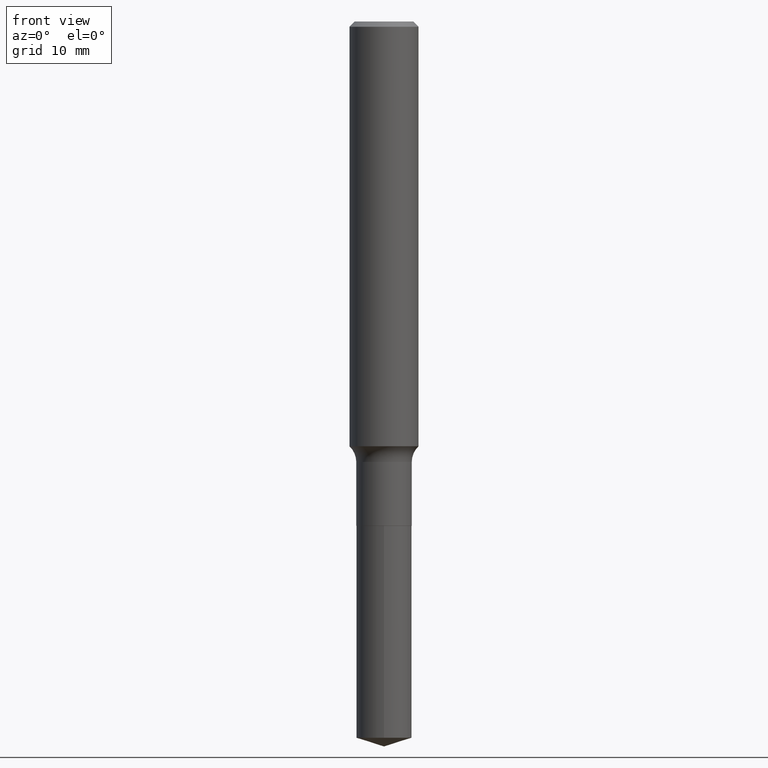
[diagram: clean part render]
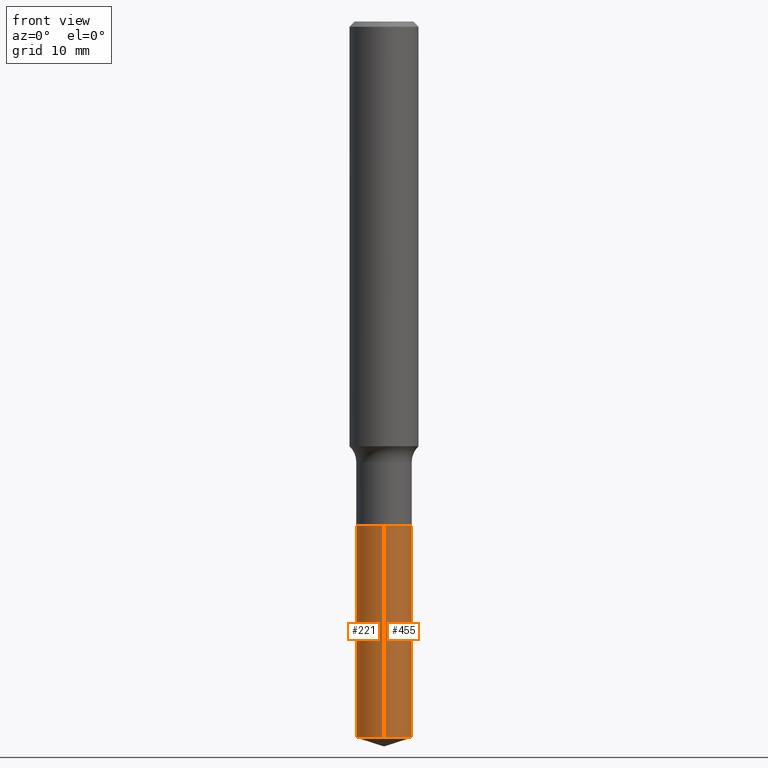
[diagram: same view with one multi-face feature highlighted, each face labeled with its STEP entity id]
A machine part, front view. The highlighted faces form ONE feature: a constant-radius fillet chain: 2 tangent blend faces with common blend radius 2.5527 mm. The faces share edges in the B-rep.
Their STEP definitions:
[1] entity #455 (Cylinder):
#30 = CIRCLE ( 'NONE', #173, 0.1005000000000000060 ) ;
#49 = CARTESIAN_POINT ( 'NONE',  ( -7.017877491074251076E-16, -0.1005000000000063759, -1.825999999999999845 ) ) ;
#72 = LINE ( 'NONE', #226, #358 ) ;
#79 = CARTESIAN_POINT ( 'NONE',  ( 6.341792019811160052E-29, -9.054606260685446473E-15, -2.593312471717662326 ) ) ;
#83 = CYLINDRICAL_SURFACE ( 'NONE', #171, 0.1005000000000000060 ) ;
#85 = DIRECTION ( 'NONE',  ( -6.982962677686265922E-15, -1.000000000000000000, 2.718256710113694497E-15 ) ) ;
#100 = DIRECTION ( 'NONE',  ( -2.445374014991277107E-29, 3.491617085227932147E-15, 1.000000000000000000 ) ) ;
#105 = EDGE_CURVE ( 'NONE', #457, #470, #254, .T. ) ;
#124 = FACE_OUTER_BOUND ( 'NONE', #309, .T. ) ;
#167 = ORIENTED_EDGE ( 'NONE', *, *, #213, .T. ) ;
#171 = AXIS2_PLACEMENT_3D ( 'NONE', #285, #199, #85 ) ;
#173 = AXIS2_PLACEMENT_3D ( 'NONE', #343, #341, #184 ) ;
#184 = DIRECTION ( 'NONE',  ( -6.982962677686265922E-15, -1.000000000000000000, 2.718256710113694497E-15 ) ) ;
#199 = DIRECTION ( 'NONE',  ( -2.445374014991277107E-29, 3.491617085227932147E-15, 1.000000000000000000 ) ) ;
#213 = EDGE_CURVE ( 'NONE', #239, #318, #72, .T. ) ;
#226 = CARTESIAN_POINT ( 'NONE',  ( 7.140954494389453000E-16, 0.1004999999999936361, -1.826000000000000512 ) ) ;
#233 = VECTOR ( 'NONE', #100, 39.37007874015748143 ) ;
#239 = VERTEX_POINT ( 'NONE', #276 ) ;
#244 = EDGE_CURVE ( 'NONE', #470, #318, #30, .T. ) ;
#254 = LINE ( 'NONE', #486, #233 ) ;
#258 = AXIS2_PLACEMENT_3D ( 'NONE', #79, #355, #317 ) ;
#269 = ORIENTED_EDGE ( 'NONE', *, *, #105, .F. ) ;
#276 = CARTESIAN_POINT ( 'NONE',  ( 7.140954494389643313E-16, 0.1004999999999909993, -2.593312471717662770 ) ) ;
#285 = CARTESIAN_POINT ( 'NONE',  ( 4.465426040094059556E-29, -6.375444924727584257E-15, -1.826000000000000068 ) ) ;
#309 = EDGE_LOOP ( 'NONE', ( #397, #167, #361, #269 ) ) ;
#317 = DIRECTION ( 'NONE',  ( -6.982962677686265922E-15, -1.000000000000000000, 5.436513420227388995E-15 ) ) ;
#318 = VERTEX_POINT ( 'NONE', #453 ) ;
#341 = DIRECTION ( 'NONE',  ( -2.445374014991277107E-29, 3.491617085227932147E-15, 1.000000000000000000 ) ) ;
#343 = CARTESIAN_POINT ( 'NONE',  ( 4.465426040094059556E-29, -6.375444924727584257E-15, -1.826000000000000068 ) ) ;
#355 = DIRECTION ( 'NONE',  ( -2.445374014991277107E-29, 3.491617085227932147E-15, 1.000000000000000000 ) ) ;
#358 = VECTOR ( 'NONE', #461, 39.37007874015748143 ) ;
#361 = ORIENTED_EDGE ( 'NONE', *, *, #244, .F. ) ;
#372 = EDGE_CURVE ( 'NONE', #457, #239, #487, .T. ) ;
#385 = CARTESIAN_POINT ( 'NONE',  ( -7.017877491074065693E-16, -0.1005000000000090959, -2.593312471717661882 ) ) ;
#397 = ORIENTED_EDGE ( 'NONE', *, *, #372, .T. ) ;
#453 = CARTESIAN_POINT ( 'NONE',  ( 7.140954494389642327E-16, 0.1004999999999936361, -1.826000000000000512 ) ) ;
#455 = ADVANCED_FACE ( 'NONE', ( #124 ), #83, .T. ) ;
#457 = VERTEX_POINT ( 'NONE', #385 ) ;
#461 = DIRECTION ( 'NONE',  ( -2.445374014991277107E-29, 3.491617085227932147E-15, 1.000000000000000000 ) ) ;
#470 = VERTEX_POINT ( 'NONE', #49 ) ;
#486 = CARTESIAN_POINT ( 'NONE',  ( -7.017877491074251076E-16, -0.1005000000000063759, -1.825999999999999845 ) ) ;
#487 = CIRCLE ( 'NONE', #258, 0.1005000000000000060 ) ;
[2] entity #221 (Cylinder):
#6 = DIRECTION ( 'NONE',  ( -2.445374014991277107E-29, 3.491617085227932147E-15, 1.000000000000000000 ) ) ;
#10 = CARTESIAN_POINT ( 'NONE',  ( 4.465426040094059556E-29, -6.375444924727584257E-15, -1.826000000000000068 ) ) ;
#11 = ORIENTED_EDGE ( 'NONE', *, *, #105, .T. ) ;
#43 = ORIENTED_EDGE ( 'NONE', *, *, #213, .F. ) ;
#49 = CARTESIAN_POINT ( 'NONE',  ( -7.017877491074251076E-16, -0.1005000000000063759, -1.825999999999999845 ) ) ;
#50 = ORIENTED_EDGE ( 'NONE', *, *, #146, .T. ) ;
#64 = CIRCLE ( 'NONE', #98, 0.1005000000000000060 ) ;
#69 = CYLINDRICAL_SURFACE ( 'NONE', #143, 0.1005000000000000060 ) ;
#72 = LINE ( 'NONE', #226, #358 ) ;
#98 = AXIS2_PLACEMENT_3D ( 'NONE', #177, #401, #447 ) ;
#100 = DIRECTION ( 'NONE',  ( -2.445374014991277107E-29, 3.491617085227932147E-15, 1.000000000000000000 ) ) ;
#105 = EDGE_CURVE ( 'NONE', #457, #470, #254, .T. ) ;
#111 = AXIS2_PLACEMENT_3D ( 'NONE', #263, #444, #259 ) ;
#116 = ORIENTED_EDGE ( 'NONE', *, *, #118, .F. ) ;
#118 = EDGE_CURVE ( 'NONE', #318, #470, #380, .T. ) ;
#143 = AXIS2_PLACEMENT_3D ( 'NONE', #10, #6, #376 ) ;
#146 = EDGE_CURVE ( 'NONE', #239, #457, #64, .T. ) ;
#177 = CARTESIAN_POINT ( 'NONE',  ( 6.341792019811160052E-29, -9.054606260685446473E-15, -2.593312471717662326 ) ) ;
#183 = FACE_OUTER_BOUND ( 'NONE', #422, .T. ) ;
#213 = EDGE_CURVE ( 'NONE', #239, #318, #72, .T. ) ;
#221 = ADVANCED_FACE ( 'NONE', ( #183 ), #69, .T. ) ;
#226 = CARTESIAN_POINT ( 'NONE',  ( 7.140954494389453000E-16, 0.1004999999999936361, -1.826000000000000512 ) ) ;
#233 = VECTOR ( 'NONE', #100, 39.37007874015748143 ) ;
#239 = VERTEX_POINT ( 'NONE', #276 ) ;
#254 = LINE ( 'NONE', #486, #233 ) ;
#259 = DIRECTION ( 'NONE',  ( -6.982962677686265922E-15, -1.000000000000000000, 2.718256710113694497E-15 ) ) ;
#263 = CARTESIAN_POINT ( 'NONE',  ( 4.465426040094059556E-29, -6.375444924727584257E-15, -1.826000000000000068 ) ) ;
#276 = CARTESIAN_POINT ( 'NONE',  ( 7.140954494389643313E-16, 0.1004999999999909993, -2.593312471717662770 ) ) ;
#318 = VERTEX_POINT ( 'NONE', #453 ) ;
#358 = VECTOR ( 'NONE', #461, 39.37007874015748143 ) ;
#376 = DIRECTION ( 'NONE',  ( -6.982962677686265922E-15, -1.000000000000000000, 2.718256710113694497E-15 ) ) ;
#380 = CIRCLE ( 'NONE', #111, 0.1005000000000000060 ) ;
#385 = CARTESIAN_POINT ( 'NONE',  ( -7.017877491074065693E-16, -0.1005000000000090959, -2.593312471717661882 ) ) ;
#401 = DIRECTION ( 'NONE',  ( -2.445374014991277107E-29, 3.491617085227932147E-15, 1.000000000000000000 ) ) ;
#422 = EDGE_LOOP ( 'NONE', ( #43, #50, #11, #116 ) ) ;
#444 = DIRECTION ( 'NONE',  ( -2.445374014991277107E-29, 3.491617085227932147E-15, 1.000000000000000000 ) ) ;
#447 = DIRECTION ( 'NONE',  ( -6.982962677686265922E-15, -1.000000000000000000, 5.436513420227388995E-15 ) ) ;
#453 = CARTESIAN_POINT ( 'NONE',  ( 7.140954494389642327E-16, 0.1004999999999936361, -1.826000000000000512 ) ) ;
#457 = VERTEX_POINT ( 'NONE', #385 ) ;
#461 = DIRECTION ( 'NONE',  ( -2.445374014991277107E-29, 3.491617085227932147E-15, 1.000000000000000000 ) ) ;
#470 = VERTEX_POINT ( 'NONE', #49 ) ;
#486 = CARTESIAN_POINT ( 'NONE',  ( -7.017877491074251076E-16, -0.1005000000000063759, -1.825999999999999845 ) ) ;